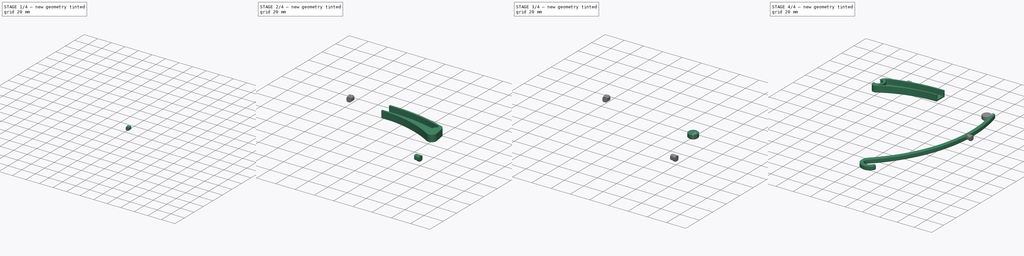
[diagram: build sequence overview — one tinted view per stage of 4, left to right]
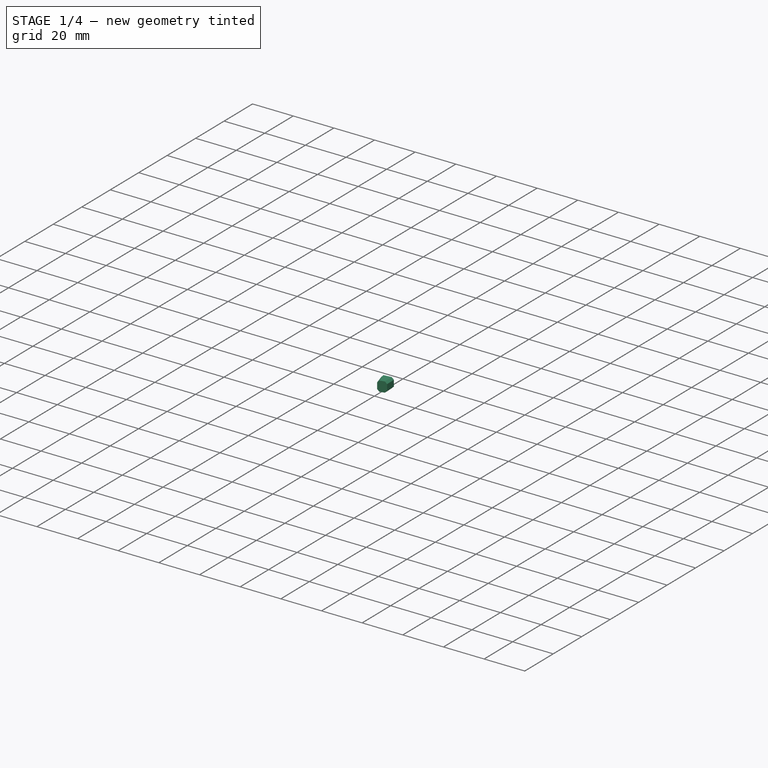
[diagram: stage 1 of 4 — iso view after this stage's code; geometry added in this stage tinted green]
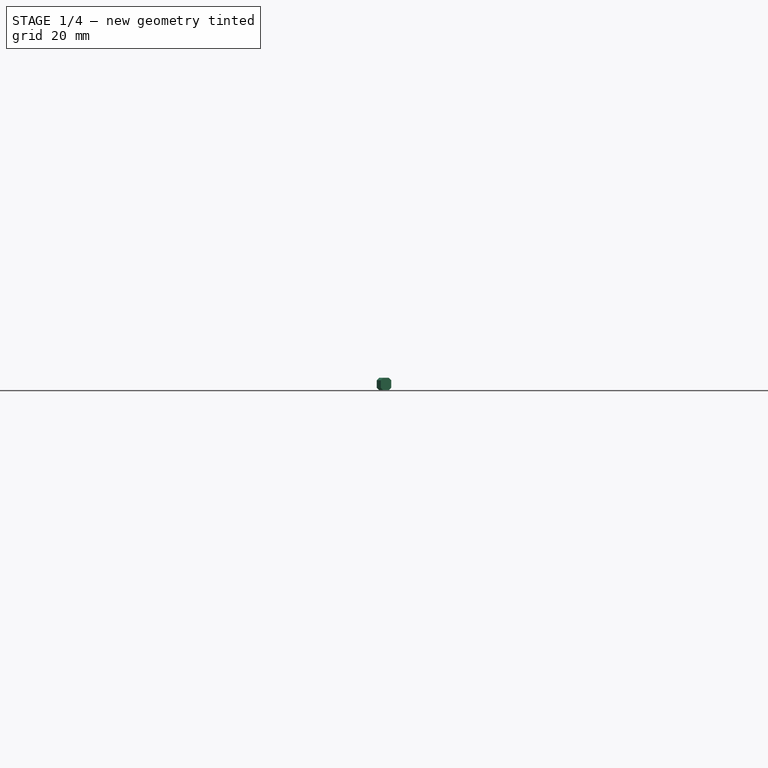
[diagram: stage 1 of 4 — front view after this stage's code; geometry added in this stage tinted green]
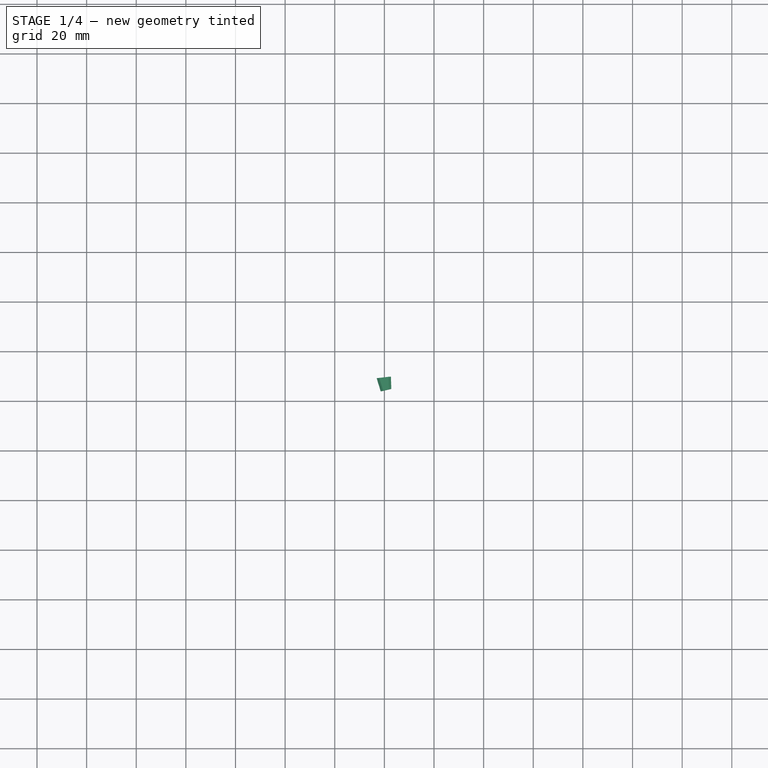
[diagram: stage 1 of 4 — top view after this stage's code; geometry added in this stage tinted green]
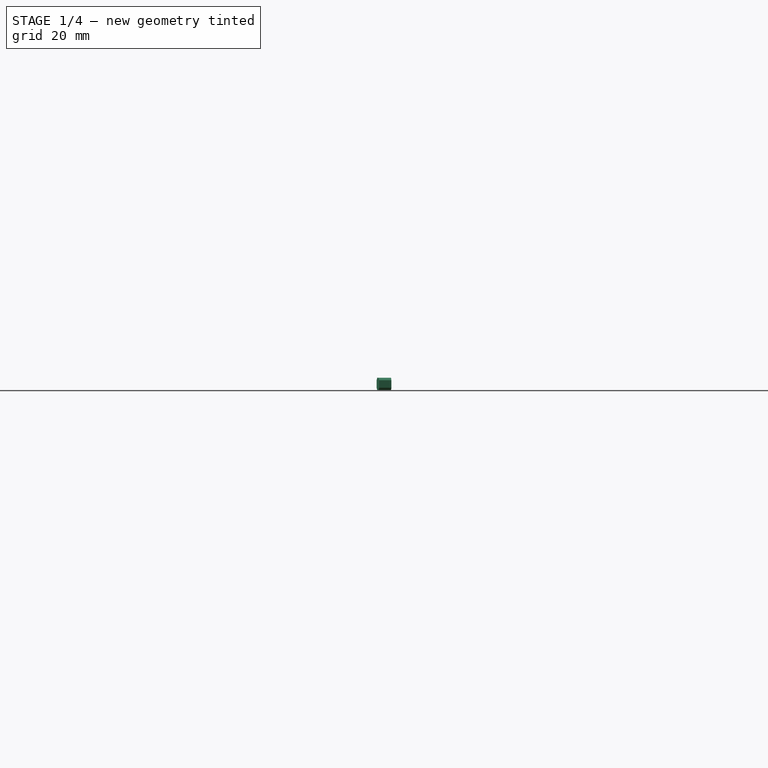
[diagram: stage 1 of 4 — right view after this stage's code; geometry added in this stage tinted green]
FCSTD DOCUMENT  (FreeCAD 0.18R16146 (Git))
Label: V1_ueber_Draft_V10
License: All rights reserved
LicenseURL: http://en.wikipedia.org/wiki/All_rights_reserved
objects: Sketcher::SketchObject×6, PartDesign::Body×5, PartDesign::Pad×4, PartDesign::Chamfer×4, Part::Mirroring×2, PartDesign::Pocket×1, PartDesign::Groove×1, PartDesign::ShapeBinder×1
note: 30 computed .brp shape members not serialized (recipe doc carries the construction recipe); baked Part::Feature solids carry a one-line shape summary decoded from their .brp

FEATURE [PartDesign::Body] Body010  label="Knubbel_Seite"
  Group = -> [Chamfer002]
  Origin = -> Origin010
  Placement = pos=(0,7,0) rot=(0,0,1;0rad)
  Tip = -> Chamfer002
FEATURE [PartDesign::Pad] Pad005
  Length = 5
  Length2 = 100
  Midplane = true
  Profile = -> Sketch
  Type = 0
FEATURE [PartDesign::Chamfer] Chamfer003
  Base = -> Pad005 [Edge7,Edge12,Edge6,Edge11]
  BaseFeature = -> Pad005
  Size = 1
FEATURE [PartDesign::Body] Body009  label="Knubbel_Stirn"
  Group = -> [Sketch,Pad005,Chamfer003]
  Origin = -> Origin009
  Tip = -> Chamfer003
FEATURE [Part::Mirroring] Part__Mirroring001  label="Knubbel_Stirn (Mirror #2)"
  Base = (0,0,0)
  Normal = (1,0,0)
  Source = -> Body009
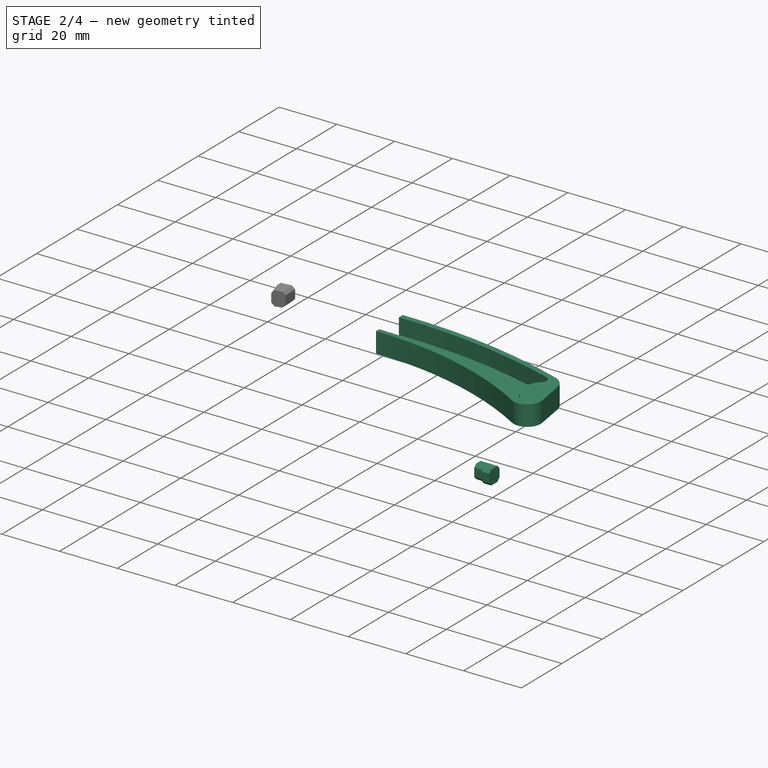
[diagram: stage 2 of 4 — iso view after this stage's code; geometry added in this stage tinted green]
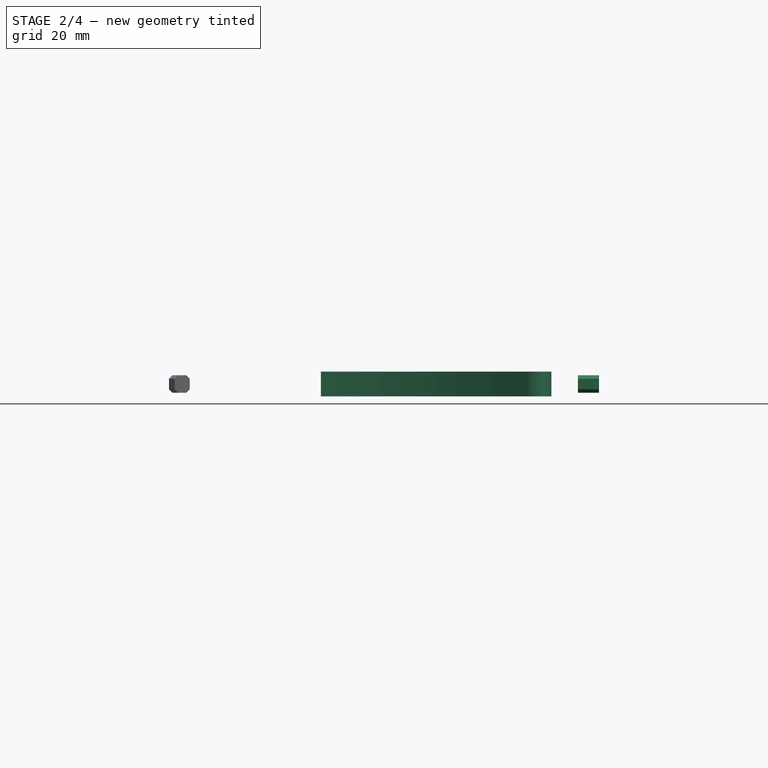
[diagram: stage 2 of 4 — front view after this stage's code; geometry added in this stage tinted green]
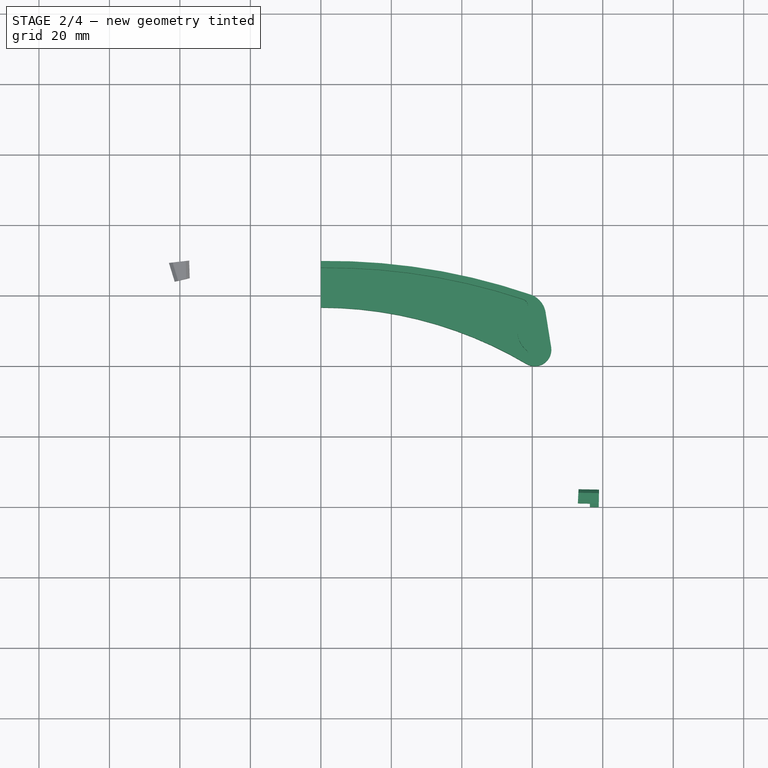
[diagram: stage 2 of 4 — top view after this stage's code; geometry added in this stage tinted green]
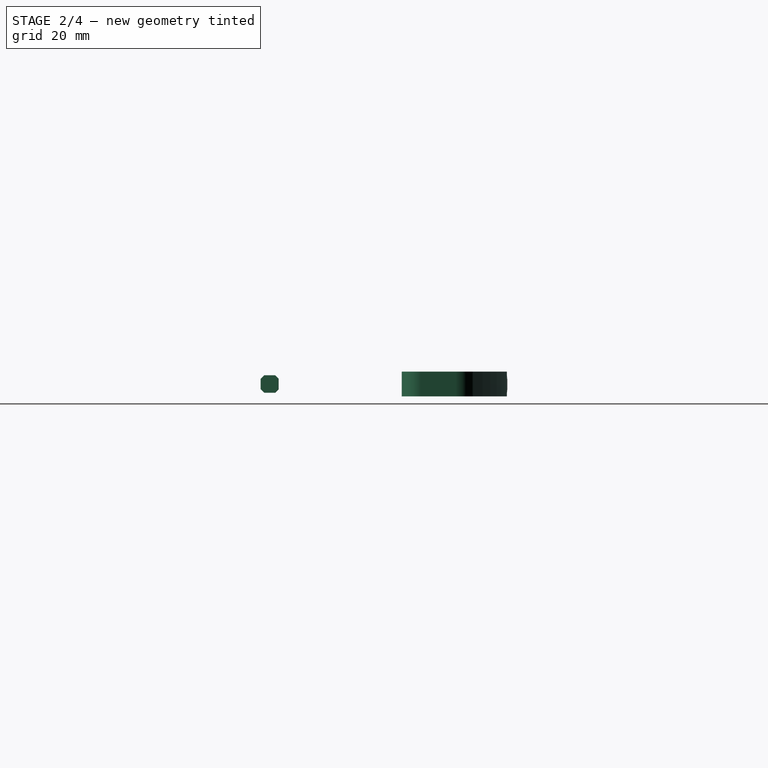
[diagram: stage 2 of 4 — right view after this stage's code; geometry added in this stage tinted green]
FEATURE [Sketcher::SketchObject] Sketch002  label="Buegel"
  MapMode = 5
  Support = -> [XY_Plane]
  expr: Constraints[7] = Constraints.w / 2
  expr: Constraints[11] = Constraints.w
  sketch-geometry (8):
    g0: ArcOfCircle CenterX=-77.8805 CenterY=-27.0559 CenterZ=0 NormalX=0 NormalY=0 NormalZ=1 AngleXU=0 Radius=152.525 StartAngle=5.48627 EndAngle=6.55997
    g1: ArcOfCircle CenterX=-77.8805 CenterY=-27.0559 CenterZ=0 NormalX=0 NormalY=0 NormalZ=1 AngleXU=0 Radius=148.525 StartAngle=5.48627 EndAngle=6.55997
    g2: ArcOfCircle CenterX=32.7 CenterY=-140.214 CenterZ=0 NormalX=0 NormalY=0 NormalZ=1 AngleXU=-3.14159 Radius=9.69328 StartAngle=5.48627 EndAngle=8.96663
    g3: ArcOfCircle CenterX=39.5999 CenterY=-143.617 CenterZ=0 NormalX=0 NormalY=0 NormalZ=1 AngleXU=1.69534 Radius=2 StartAngle=4.1297 EndAngle=7.27129
    g4: ArcOfCircle CenterX=32.7 CenterY=-140.214 CenterZ=0 NormalX=0 NormalY=0 NormalZ=1 AngleXU=-3.14159 Radius=5.69328 StartAngle=5.48627 EndAngle=8.96663
    g5: ArcOfCircle CenterX=66.9149 CenterY=14.0772 CenterZ=0 NormalX=0 NormalY=0 NormalZ=1 AngleXU=0 Radius=2 StartAngle=0.276786 EndAngle=3.41838
    g6: LineSegment [constr] StartX=25.9252 StartY=-133.282 StartZ=0 EndX=28.7209 EndY=-136.142 EndZ=0
    g7: LineSegment [constr] StartX=64.991 StartY=13.5307 StartZ=0 EndX=68.8388 EndY=14.6237 EndZ=0
  constraints (17):
    c: Coincident(g2,g4)
    c: Perpendicular(g1,g6,g6) = 4.71239
    c: Distance(g6) = 4  'w'
    c: Tangent(g0,g4) = 1.5708
    c: Tangent(g1,g2) = 1.5708
    c: Coincident(g0,g6)
    c: Coincident(g1,g6)
    c: Radius(g5) = 2
    c: Perpendicular(g0,g7)
    c: Coincident(g5,g7)
    c: Tangent(g0,g5) = -1.5708
    c: Distance(g7) = 4
    c: Tangent(g3,g4) = 1.5708
    c: Tangent(g2,g3) = -1.5708
    c: DistanceX(g-1,g2) = 32.7
    c: Coincident(g1,g5)
    c: PointOnObject(g5,g7)
FEATURE [Sketcher::SketchObject] Sketch009
  MapMode = 5
  Placement = pos=(0,0,3.5) rot=(0,0,1;0rad)
  sketch-geometry (6):
    g0: LineSegment StartX=1.04e-14 StartY=27.8983 StartZ=0 EndX=1.04e-14 EndY=18.183 EndZ=0
    g1: ArcOfCircle CenterX=0.0156954 CenterY=-97.8247 CenterZ=0 NormalX=0 NormalY=0 NormalZ=1 AngleXU=0 Radius=116.008 StartAngle=1.0536 EndAngle=1.57093
    g2: ArcOfCircle CenterX=2.06421 CenterY=-147.288 CenterZ=0 NormalX=0 NormalY=0 NormalZ=1 AngleXU=0 Radius=175.198 StartAngle=1.24972 EndAngle=1.58258
    g3: ArcOfCircle CenterX=63.0133 CenterY=10.0544 CenterZ=0 NormalX=0 NormalY=0 NormalZ=1 AngleXU=0 Radius=7.25585 StartAngle=2.31229 EndAngle=4.02027
    g4: ArcOfCircle CenterX=56.6903 CenterY=16.9585 CenterZ=0 NormalX=0 NormalY=0 NormalZ=1 AngleXU=0 Radius=2.10615 StartAngle=5.45388 EndAngle=7.5329
    g5: ArcOfCircle CenterX=57.8151 CenterY=3.7833 CenterZ=0 NormalX=0 NormalY=0 NormalZ=1 AngleXU=0 Radius=0.88952 StartAngle=4.19519 EndAngle=7.16186
  constraints (8):
    c: PointOnObject(g0,g-2)
    c: Vertical(g0)
    c: Coincident(g1,g0)
    c: Coincident(g2,g0)
    c: Tangent(g1,g5) = 1.5708
    c: Tangent(g3,g5) = 1.5708
    c: Tangent(g3,g4) = 1.5708
    c: Tangent(g2,g4) = -1.5708
FEATURE [Sketcher::SketchObject] Sketch010  label="Stirn003"
  MapMode = 5
  Support = -> [XY_Plane008]
  sketch-geometry (6):
    g0: ArcOfCircle CenterX=2.16547 CenterY=-147.204 CenterZ=0 NormalX=0 NormalY=0 NormalZ=1 AngleXU=-3.14159 Radius=177.017 StartAngle=4.38255 EndAngle=4.72462
    g1: ArcOfCircle CenterX=0 CenterY=-97.8229 CenterZ=0 NormalX=0 NormalY=0 NormalZ=1 AngleXU=-3.14159 Radius=114.423 StartAngle=4.1776 EndAngle=4.71239
    g2: LineSegment StartX=-4.57e-14 StartY=29.8 StartZ=0 EndX=7e-15 EndY=16.6 EndZ=0
    g3: LineSegment StartX=63.7883 StartY=15.1771 StartZ=0 EndX=65.3517 EndY=5.409 EndZ=0
    g4: ArcOfCircle CenterX=57.4053 CenterY=14.1555 CenterZ=0 NormalX=0 NormalY=0 NormalZ=1 AngleXU=0 Radius=6.46423 StartAngle=0.158703 EndAngle=1.24096
    g5: ArcOfCircle CenterX=60.7119 CenterY=4.66641 CenterZ=0 NormalX=0 NormalY=0 NormalZ=1 AngleXU=0 Radius=4.69885 StartAngle=4.1776 EndAngle=6.44189
  constraints (11):
    c: PointOnObject(g0,g-2)
    c: Coincident(g1,g2)
    c: PointOnObject(g1,g-2)
    c: Coincident(g0,g2)
    c: DistanceY(g-1,g1) = 16.6
    c: DistanceY(g1,g0) = 13.2
    c: Tangent(g3,g4) = 1.5708
    c: Tangent(g0,g4) = -1.5708
    c: Tangent(g3,g5) = 1.5708
    c: Tangent(g1,g5) = 1.5708
    c: PointOnObject(g1,g-2)
FEATURE [PartDesign::Pad] Pad003
  Length = 7
  Length2 = 100
  Midplane = true
  Profile = -> Sketch010
  Type = 0
FEATURE [PartDesign::Pocket] Pocket
  BaseFeature = -> Pad003
  Length = 5.5
  Length2 = 100
  Profile = -> Sketch009
  Type = 0
FEATURE [PartDesign::Body] Body008  label="Achse"
  Group = -> [ShapeBinder,Sketch012,Pad004,Chamfer001]
  Origin = -> Origin008
  Tip = -> Chamfer001
FEATURE [Sketcher::SketchObject] Sketch
  MapMode = 5
  Support = -> [XY_Plane010]
  sketch-geometry (4):
    g0: LineSegment StartX=37.3666 StartY=29.933 StartZ=0 EndX=43.0958 EndY=29.2681 EndZ=0
    g1: LineSegment StartX=43.0958 StartY=29.2681 StartZ=0 EndX=41.4741 EndY=23.9883 EndZ=0
    g2: LineSegment StartX=37.2146 StartY=24.9911 StartZ=0 EndX=37.3666 EndY=29.933 EndZ=0
    g3: LineSegment StartX=37.2146 StartY=24.9911 StartZ=0 EndX=41.4741 EndY=23.9883 EndZ=0
  constraints (4):
    c: Coincident(g0,g1)
    c: Coincident(g1,g3)
    c: Coincident(g2,g3)
    c: Coincident(g2,g0)
FEATURE [PartDesign::Chamfer] Chamfer002
  Size = 1
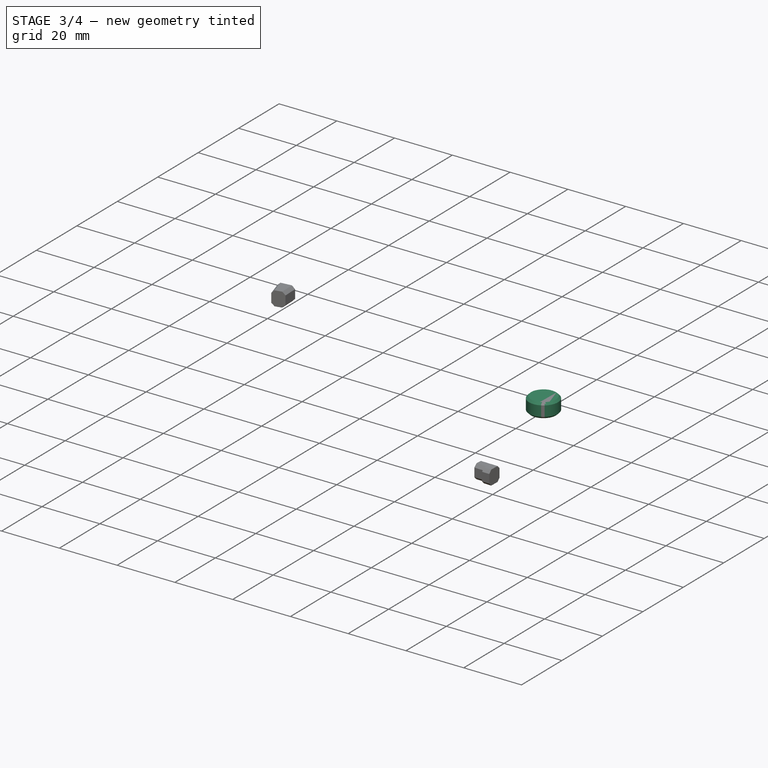
[diagram: stage 3 of 4 — iso view after this stage's code; geometry added in this stage tinted green]
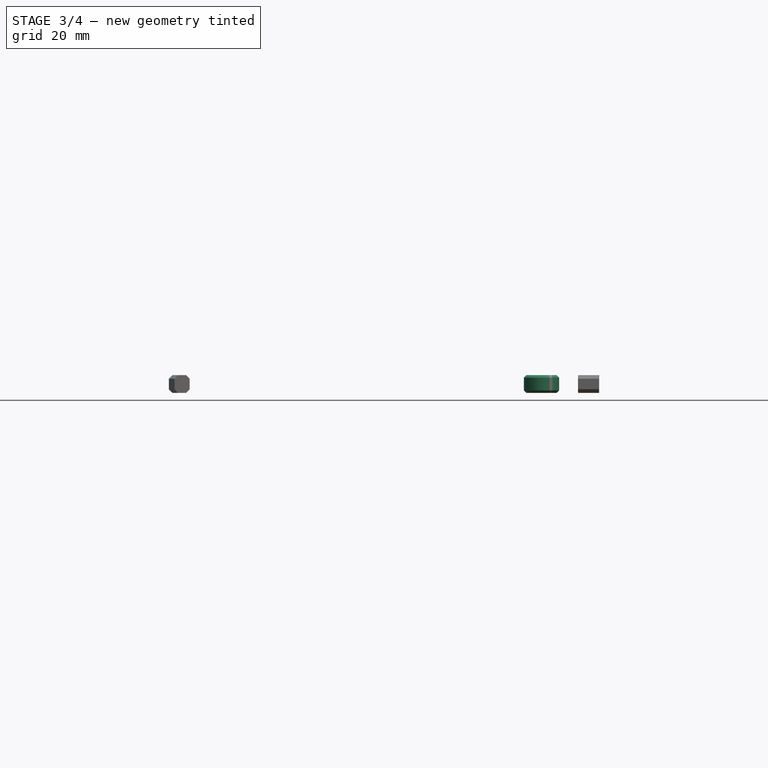
[diagram: stage 3 of 4 — front view after this stage's code; geometry added in this stage tinted green]
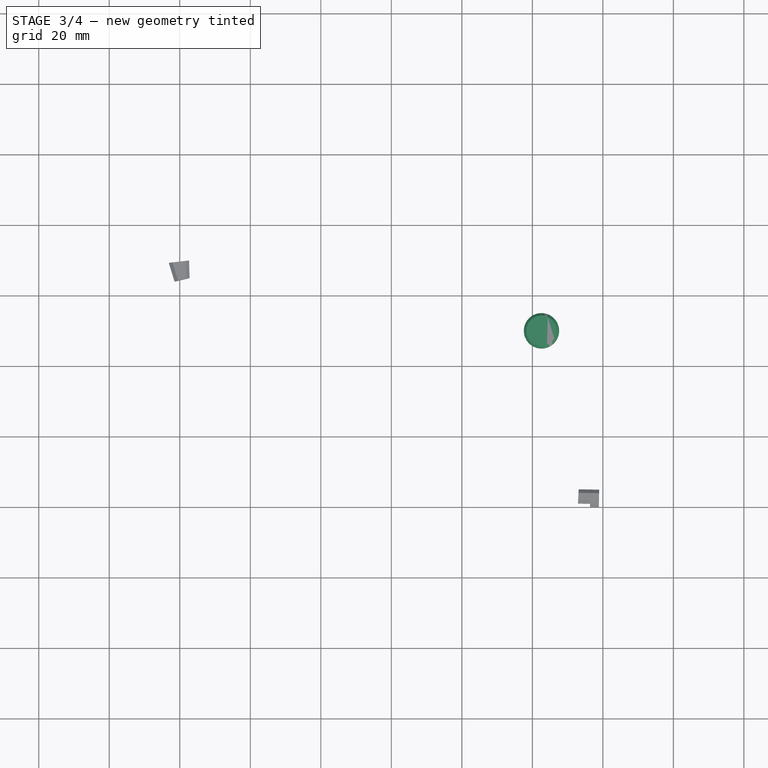
[diagram: stage 3 of 4 — top view after this stage's code; geometry added in this stage tinted green]
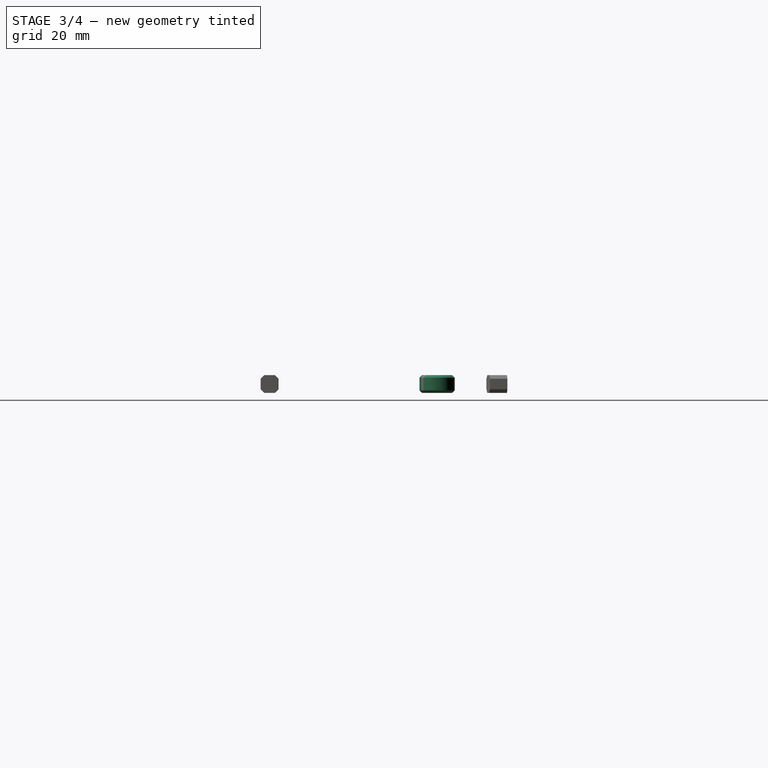
[diagram: stage 3 of 4 — right view after this stage's code; geometry added in this stage tinted green]
FEATURE [Sketcher::SketchObject] Sketch011
  AttachmentOffset = pos=(0,0,-2) rot=(0,0,1;0rad)
  MapMode = 5
  Placement = pos=(62.5887,10.0173,1e-16) rot=(0.516342,0.605554,0.605554;2.18832rad)
  Support = -> [Pocket]
  sketch-geometry (6):
    g0: LineSegment StartX=0 StartY=-3.6 StartZ=0 EndX=0 EndY=3.6 EndZ=0
    g1: LineSegment StartX=0 StartY=3.6 StartZ=0 EndX=5 EndY=3.6 EndZ=0
    g2: LineSegment StartX=0 StartY=-3.6 StartZ=0 EndX=5 EndY=-3.6 EndZ=0
    g3: LineSegment StartX=5 StartY=-2.4 StartZ=0 EndX=5 EndY=2.4 EndZ=0
    g4: ArcOfCircle CenterX=5 CenterY=3 CenterZ=0 NormalX=0 NormalY=0 NormalZ=1 AngleXU=0 Radius=0.6 StartAngle=1.5708 EndAngle=4.71239
    g5: ArcOfCircle CenterX=5.00001 CenterY=-3 CenterZ=0 NormalX=0 NormalY=0 NormalZ=1 AngleXU=0 Radius=0.6 StartAngle=1.57081 EndAngle=4.71238
  constraints (20):
    c: Vertical(g0)
    c: Coincident(g0,g1)
    c: Horizontal(g1)
    c: Coincident(g0,g2)
    c: Horizontal(g2)
    c: Vertical(g3)
    c: Coincident(g4,g1)
    c: Vertical(g1,g4)
    c: Coincident(g3,g4)
    c: PointOnObject(g0,g-2)
    c: DistanceY(g-1,g4) = 3
    c: DistanceX(g0,g1) = 5
    c: Coincident(g2,g5)
    c: Coincident(g3,g5)
    c: Vertical(g3,g2)
    c: DistanceY(g5,g-1) = 3
    c: Radius(g4) = 0.6
    c: DistanceY(g-1,g0) = 3.6
    c: DistanceY(g0,g-1) = 3.6
    c: Radius(g5) = 0.6
FEATURE [PartDesign::Groove] Groove
  Angle = 360
  Axis = (1e-16,2e-16,1)
  Base = (62.5887,10.0173,1e-16)
  BaseFeature = -> Pocket
  Profile = -> Sketch011
  ReferenceAxis = -> Sketch011 [V_Axis]
FEATURE [PartDesign::Body] Body  label="Buegel001"
  Group = -> [Sketch002,Pad,Chamfer]
  Origin = -> Origin
  Tip = -> Chamfer
FEATURE [PartDesign::ShapeBinder] ShapeBinder
  Placement = pos=(62.5887,10.0173,1e-16) rot=(0.516342,0.605554,0.605554;2.18832rad)
  Support = -> [Groove]
  TraceSupport = false
FEATURE [Sketcher::SketchObject] Sketch012
  ExternalGeometry = -> [ShapeBinder]
  MapMode = 5
  Support = -> [XY_Plane009]
  sketch-geometry (1):
    g0: Circle CenterX=62.5887 CenterY=10.0173 CenterZ=0 NormalX=0 NormalY=0 NormalZ=1 AngleXU=0 Radius=5
FEATURE [PartDesign::Pad] Pad004
  Length = 5
  Length2 = 100
  Midplane = true
  Profile = -> Sketch012
  Type = 0
FEATURE [PartDesign::Chamfer] Chamfer001
  Base = -> Pad004 [Face1]
  BaseFeature = -> Pad004
  Size = 0.7
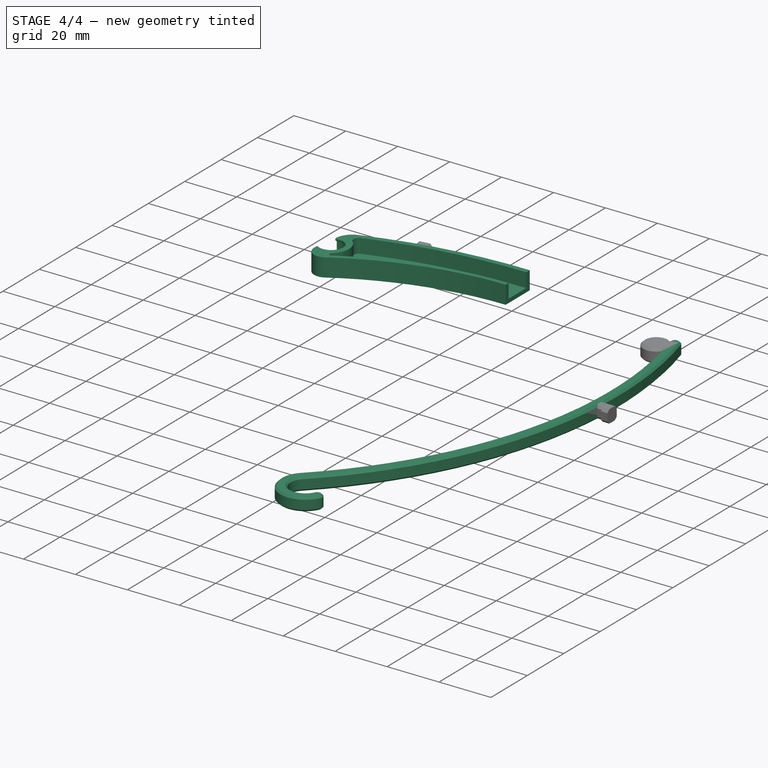
[diagram: stage 4 of 4 — iso view after this stage's code; geometry added in this stage tinted green]
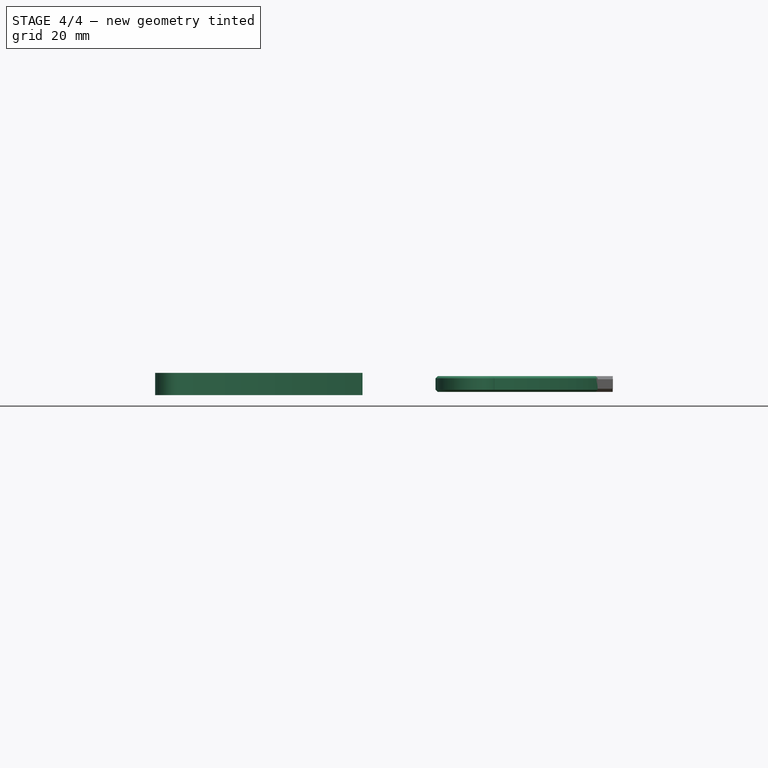
[diagram: stage 4 of 4 — front view after this stage's code; geometry added in this stage tinted green]
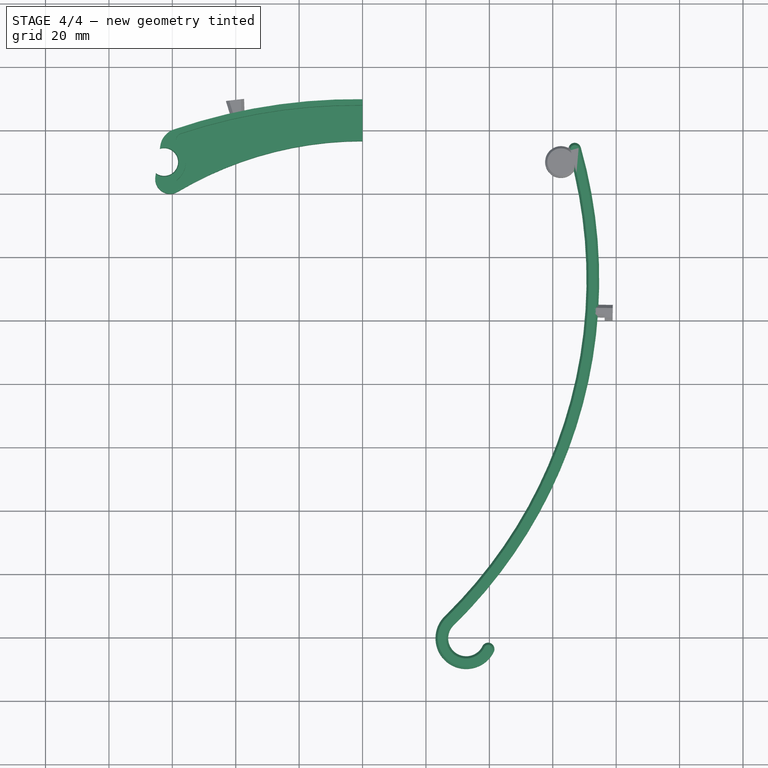
[diagram: stage 4 of 4 — top view after this stage's code; geometry added in this stage tinted green]
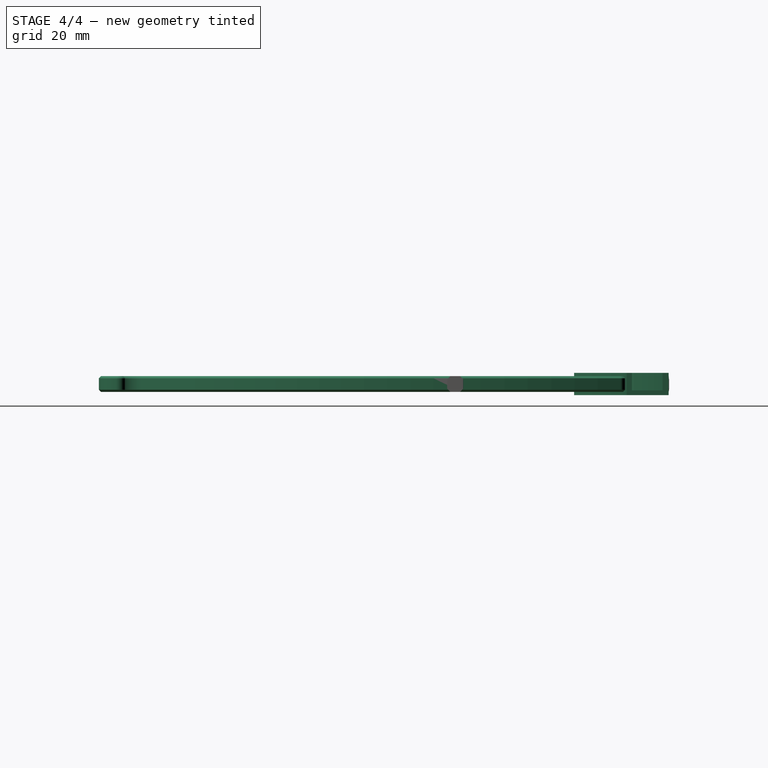
[diagram: stage 4 of 4 — right view after this stage's code; geometry added in this stage tinted green]
FEATURE [PartDesign::Body] Body007  label="Stirn"
  Group = -> [Sketch009,Sketch010,Pad003,Pocket,Sketch011,Groove]
  Origin = -> Origin007
  Tip = -> Groove
FEATURE [PartDesign::Pad] Pad  label="Pad_B"
  Length = 5
  Length2 = 100
  Midplane = true
  Profile = -> Sketch002
  Type = 0
FEATURE [Part::Mirroring] Part__Mirroring  label="Stirn (Mirror #1)"
  Base = (0,0,0)
  Normal = (1,0,0)
  Source = -> Body007
FEATURE [PartDesign::Chamfer] Chamfer
  Base = -> Pad [Face4]
  BaseFeature = -> Pad
  Size = 0.7
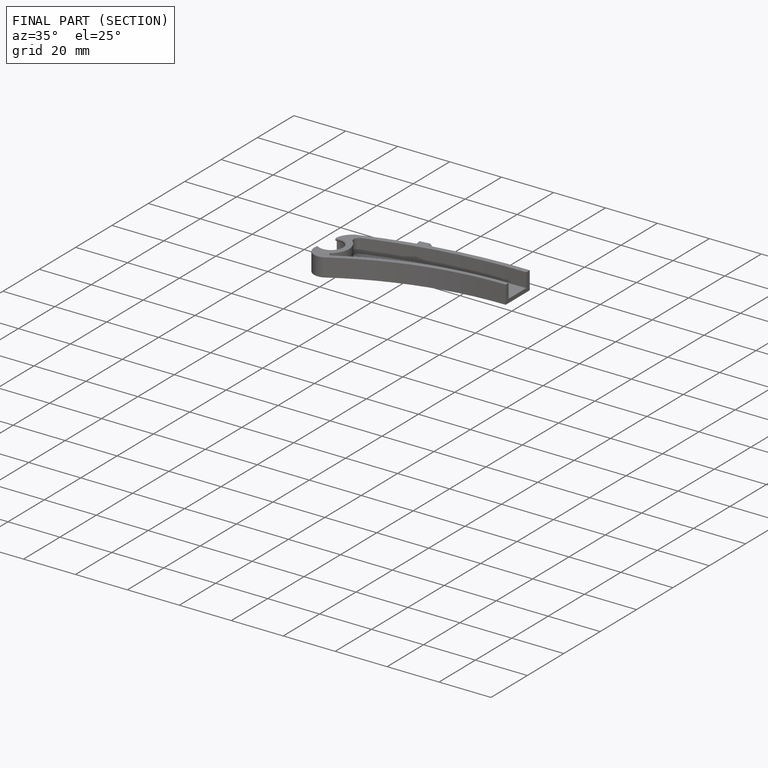
[diagram: finished part — half-section view (interior)]
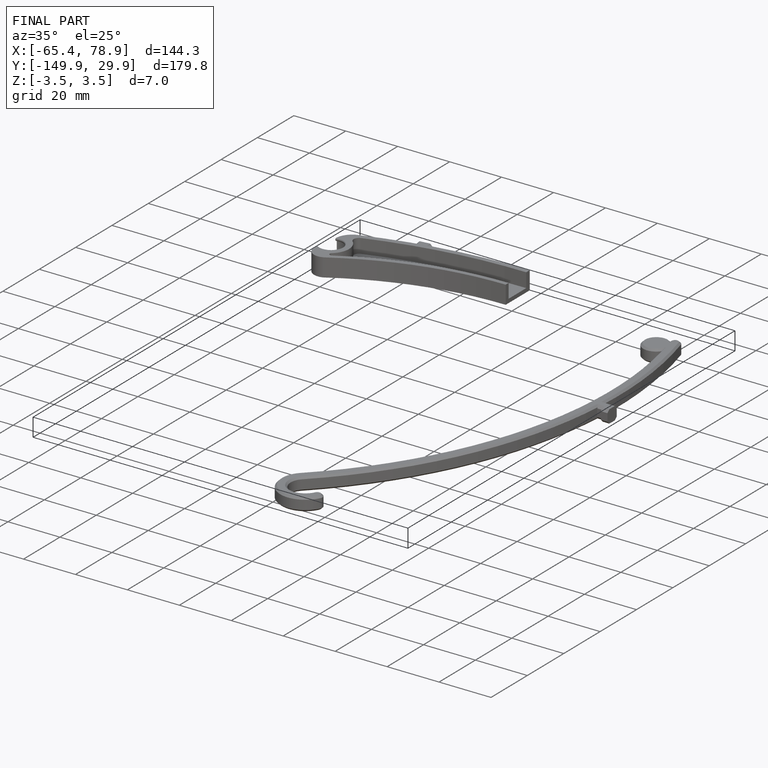
[diagram: finished part — iso view with bounding-box wireframe]
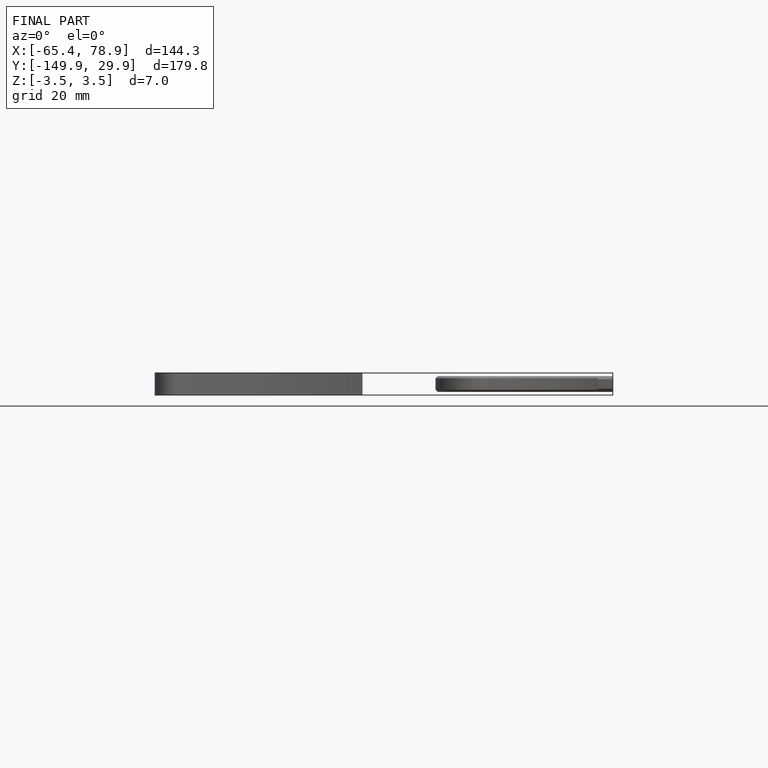
[diagram: finished part — front view with bounding-box wireframe]
